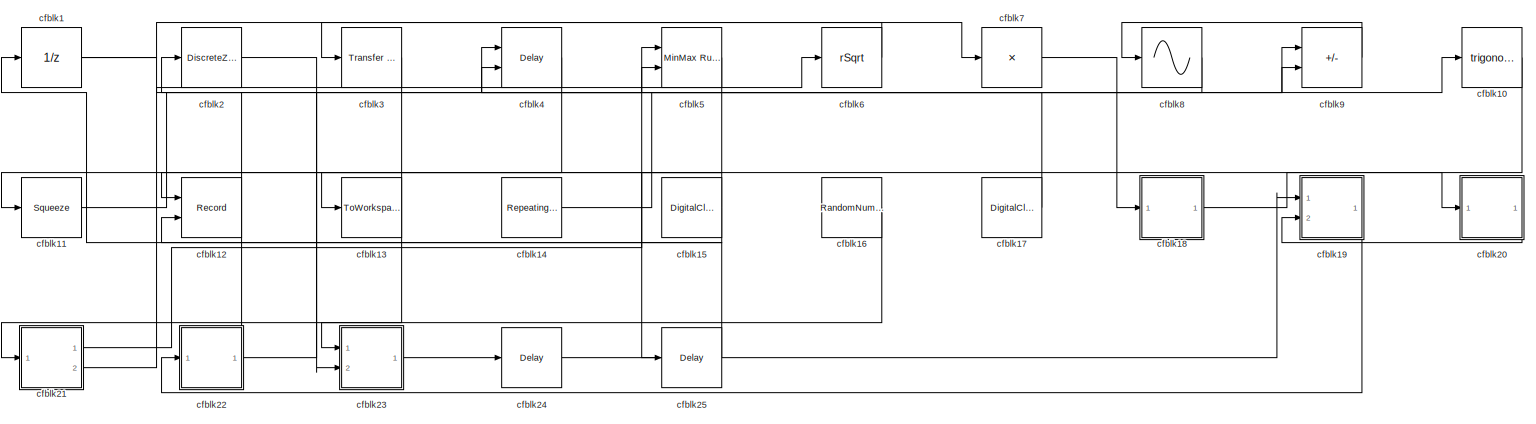
[diagram: root canvas - part 1/1, most of the canvas]
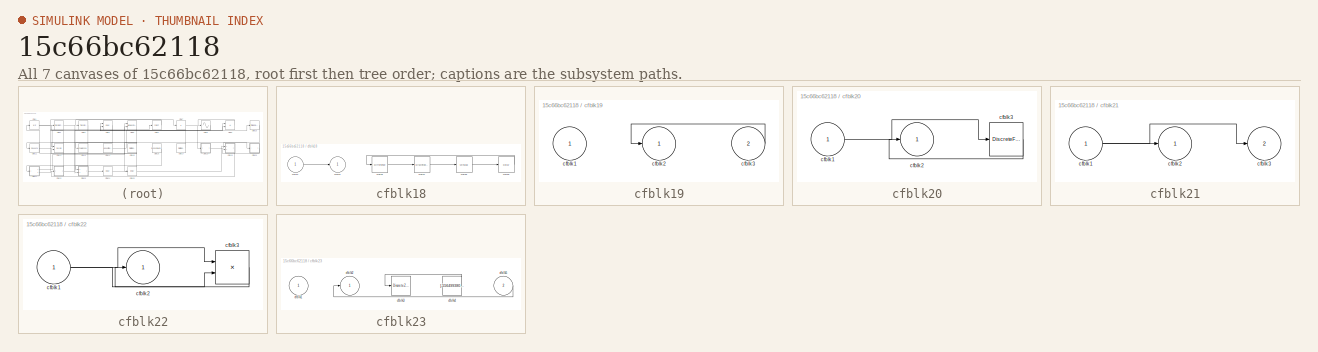
[diagram: thumbnail index - all 7 canvases of the model, root first then tree order]
MODEL slx_15c66bc62118
KIND model
CONFIG AbsTol = auto
CONFIG EnableMultiTasking = off
CONFIG FixedStep = auto
CONFIG MaxStep = auto
CONFIG MinStep = auto
CONFIG RelTol = 1e-3
CONFIG SampleTimeConstraint = Unconstrained
CONFIG SolverName = VariableStepAuto
CONFIG StartTime = 0.0
CONFIG StopTime = 10.0
BLOCK [UnitDelay] cfblk1
  HasFrameUpgradeWarning = on
BLOCK [Trigonometry] cfblk10
  Ports = [1, 1]
BLOCK [Squeeze] cfblk11
BLOCK [Record] cfblk12
  CompatibilityTag = XY
  FileSettingsInternal = {"entries":[{"content":{"excelSettings":{"content":{},"type":"Streamout.ExcelSettings"}},"type":"Streamout.FileSettingStorage","uuid":"792bf4ae-df5f-4a02-8cd9-bdcd44b156f6"}],"packageUris":["http://schema.mathworks.com/mf0/streamout_blocks/R2020a"],"version":"1.0"}
  Layout = [1 1]
  Ports = [2]
  SignalsInternal = {"entries":[{"content":{"signals":[{"content":{"blockPath":["sampleModel200/cfblk12"],"channel":[],"dimensions":[1],"domain":"sampleModel200/cfblk12","lineColor":"#a2142f","plots":[1],"port":1,"sid":[""],"signalID":7649,"signalName":"cfblk3"},"type":"RecordBlkView.Signal","uuid":"51a90d37-c1cf-4aff-97b9-1f3611509108"},{"content":{"blockPath":["sampleModel200/cfblk12"],"channel":[],"dimensions":[1]...<+382ch>
  VisualizationBindings = {"xyplotplugin":{"info":[{"series":[{"bindingParametersList":[{"parameter":"X-Axis","signalID":7649,"signalName":"cfblk3"},{"parameter":"Y-Axis","signalID":7653,"signalName":"cfblk15"}],"seriesID":1125}],"subplotID":1}]}}
BLOCK [ToWorkspace] cfblk13
  FixptAsFi = on
  MaxDataPoints = inf
  Ports = [1]
  SampleTime = -1
  SaveFormat = Timeseries
  VariableName = dywpmqt
BLOCK [Reference] cfblk14  REF=simulink/Sources/Repeating
Sequence
Interpolated
  Ports = [0, 1]
  SourceBlock = simulink/Sources/Repeating\nSequence\nInterpolated
  SourceProductBaseCode = SL
  SourceType = Repeating Sequence Interpolated
BLOCK [DigitalClock] cfblk15
BLOCK [RandomNumber] cfblk16
  Mean = [6390.487041]
  SampleTime = 0.1
  Seed = [695413939.000000]
  Variance = [16438.141361]
BLOCK [DigitalClock] cfblk17
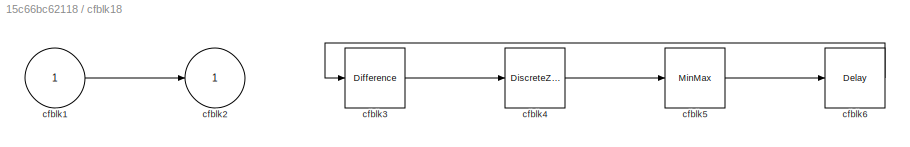
BLOCK [SubSystem] cfblk18
  Ports = [1, 1]
  RequestExecContextInheritance = off
BLOCK [Inport] cfblk18/cfblk1
BLOCK [Outport] cfblk18/cfblk2
BLOCK [Reference] cfblk18/cfblk3  REF=simulink/Discrete/Difference
  Ports = [1, 1]
  SourceBlock = simulink/Discrete/Difference
  SourceProductBaseCode = SL
  SourceType = Difference
BLOCK [DiscreteZeroPole] cfblk18/cfblk4
  Gain = 1
  Poles = [0 0.5]
BLOCK [MinMax] cfblk18/cfblk5
  Function = max
  Ports = [1, 1]
BLOCK [Delay] cfblk18/cfblk6
  InputPortMap = u0
  Ports = [1, 1]
  SampleTime = 1
BLOCK [SubSystem] cfblk19
  Ports = [2, 1]
  RequestExecContextInheritance = off
BLOCK [Inport] cfblk19/cfblk1
BLOCK [Outport] cfblk19/cfblk2
BLOCK [Inport] cfblk19/cfblk3
  Port = 2
BLOCK [DiscreteZeroPole] cfblk2
  Gain = 1
  Poles = [0 0.5]
BLOCK [SubSystem] cfblk20
  Ports = [1, 1]
  RequestExecContextInheritance = off
BLOCK [Inport] cfblk20/cfblk1
BLOCK [Outport] cfblk20/cfblk2
BLOCK [DiscreteFir] cfblk20/cfblk3
  InputPortMap = u0
  OutputPortMap = o0
  Ports = [1, 1]
  SampleTime = 1
BLOCK [SubSystem] cfblk21
  Ports = [1, 2]
  RequestExecContextInheritance = off
BLOCK [Inport] cfblk21/cfblk1
BLOCK [Outport] cfblk21/cfblk2
BLOCK [Outport] cfblk21/cfblk3
  Port = 2
BLOCK [SubSystem] cfblk22
  Ports = [1, 1]
  RequestExecContextInheritance = off
BLOCK [Inport] cfblk22/cfblk1
BLOCK [Outport] cfblk22/cfblk2
BLOCK [Product] cfblk22/cfblk3
  Ports = [2, 1]
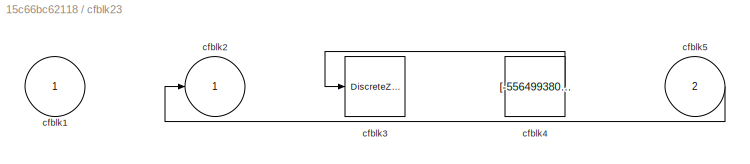
BLOCK [SubSystem] cfblk23
  Ports = [2, 1]
  RequestExecContextInheritance = off
BLOCK [Inport] cfblk23/cfblk1
BLOCK [Outport] cfblk23/cfblk2
BLOCK [DiscreteZeroPole] cfblk23/cfblk3
  Gain = 1
  Poles = [0 0.5]
BLOCK [Constant] cfblk23/cfblk4
  SampleTime = 1
  Value = [-556499380.533954]
BLOCK [Inport] cfblk23/cfblk5
  Port = 2
BLOCK [Delay] cfblk24
  InputPortMap = u0
  Ports = [1, 1]
  SampleTime = 1
BLOCK [Delay] cfblk25
  InputPortMap = u0
  Ports = [1, 1]
  SampleTime = 1
BLOCK [Reference] cfblk3  REF=simulink/Discrete/Transfer Fcn
Lead or Lag
  Ports = [1, 1]
  SourceBlock = simulink/Discrete/Transfer Fcn\nLead or Lag
  SourceProductBaseCode = SL
  SourceType = Lead or Lag Compensator
BLOCK [Delay] cfblk4
  InputPortMap = u0,e6
  Ports = [2, 1]
  SampleTime = 1
  ShowEnablePort = on
BLOCK [Reference] cfblk5  REF=simulink/Math
Operations/MinMax
Running
Resettable
  Ports = [2, 1]
  SourceBlock = simulink/Math\nOperations/MinMax\nRunning\nResettable
  SourceProductBaseCode = SL
  SourceType = MinMax Running Resettable
BLOCK [Sqrt] cfblk6
  AlgorithmType = Newton-Raphson
  Operator = rSqrt
BLOCK [Product] cfblk7
  Inputs = *
  Ports = [1, 1]
BLOCK [Sin] cfblk8
  Ports = [1, 1]
  SampleTime = 0
  TimeSource = Use external signal
BLOCK [Sum] cfblk9
  IconShape = rectangular
  Inputs = +-
  Ports = [2, 1]
LINE cfblk10:1 -> cfblk25:1
LINE cfblk11:1 -> cfblk10:1
LINE cfblk14:1 -> cfblk9:1
NET cfblk15:1 -> cfblk12:2, cfblk13:1
LINE cfblk16:1 -> cfblk21:1
LINE cfblk17:1 -> cfblk4:1
LINE cfblk18/cfblk1:1 -> cfblk18/cfblk2:1
LINE cfblk18/cfblk3:1 -> cfblk18/cfblk4:1
LINE cfblk18/cfblk4:1 -> cfblk18/cfblk5:1
LINE cfblk18/cfblk5:1 -> cfblk18/cfblk6:1
LINE cfblk18/cfblk6:1 -> cfblk18/cfblk3:1
LINE cfblk18:1 -> cfblk20:1
LINE cfblk19/cfblk3:1 -> cfblk19/cfblk2:1
LINE cfblk19:1 -> cfblk22:1
NET cfblk1:1 -> cfblk5:2, cfblk7:1
LINE cfblk20/cfblk1:1 -> cfblk20/cfblk3:1
LINE cfblk20/cfblk3:1 -> cfblk20/cfblk2:1
LINE cfblk20:1 -> cfblk19:2
NET cfblk21/cfblk1:1 -> cfblk21/cfblk2:1, cfblk21/cfblk3:1
LINE cfblk21:1 -> cfblk5:1
LINE cfblk21:2 -> cfblk6:1
NET cfblk22/cfblk1:1 -> cfblk22/cfblk3:1, cfblk22/cfblk3:2
LINE cfblk22/cfblk3:1 -> cfblk22/cfblk2:1
NET cfblk22:1 -> cfblk2:1, cfblk9:2
LINE cfblk23/cfblk4:1 -> cfblk23/cfblk3:1
LINE cfblk23/cfblk5:1 -> cfblk23/cfblk2:1
LINE cfblk23:1 -> cfblk24:1
LINE cfblk24:1 -> cfblk19:1
LINE cfblk25:1 -> cfblk1:1
LINE cfblk2:1 -> cfblk23:2
LINE cfblk3:1 -> cfblk12:1
LINE cfblk4:1 -> cfblk11:1
LINE cfblk5:1 -> cfblk23:1
LINE cfblk6:1 -> cfblk3:1
LINE cfblk7:1 -> cfblk18:1
LINE cfblk8:1 -> cfblk4:2
LINE cfblk9:1 -> cfblk8:1
note: NET lines group one-source signal fan-out (src -> all destinations, sorted); 1:1 wires keep LINE
